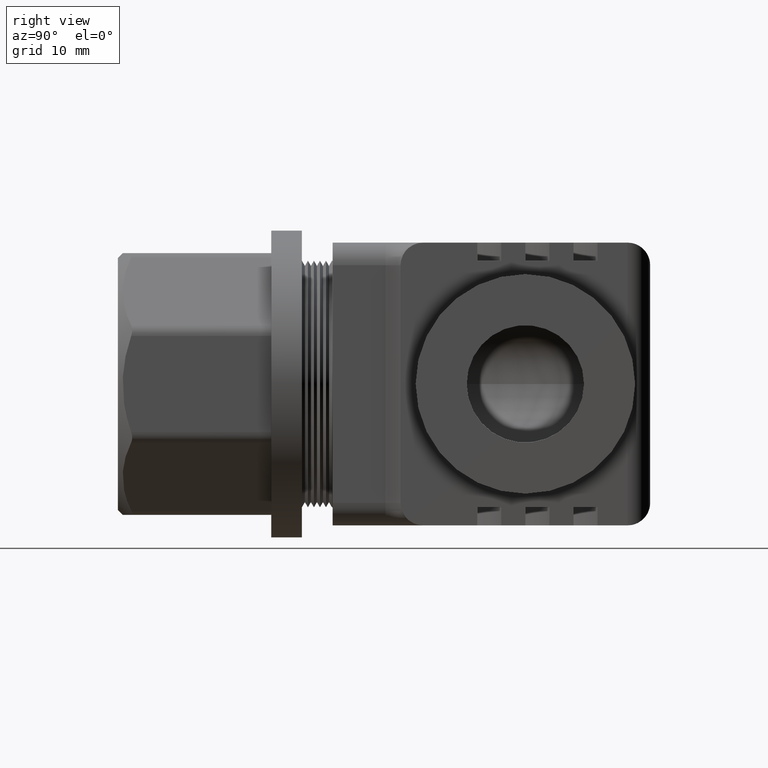
[diagram: clean part render]
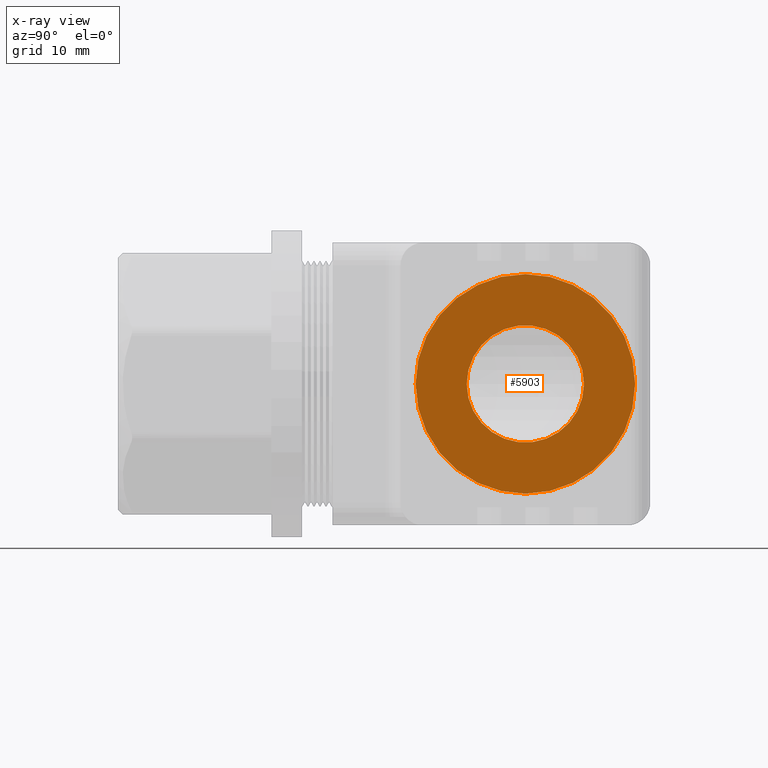
[diagram: x-ray — body ghosted, one internal face saturated and labeled with its STEP entity id]
A machine part, right view, then the same camera in x-ray: the body is ghosted and one INTERNAL B-rep face — a face not visible from any outside direction — is saturated and labeled: STEP entity #5903.
In plain terms, the highlighted planar face has unit normal (1, 0, 0).
Its self-contained STEP definition (entity closure, byte-faithful):
#1384 = EDGE_CURVE ( 'NONE', #1385, #1386, #3998, .T. ) ;
#1385 = VERTEX_POINT ( 'NONE', #3994 ) ;
#1386 = VERTEX_POINT ( 'NONE', #3993 ) ;
#1397 = EDGE_CURVE ( 'NONE', #1410, #1398, #3984, .T. ) ;
#1398 = VERTEX_POINT ( 'NONE', #3979 ) ;
#1410 = VERTEX_POINT ( 'NONE', #4024 ) ;
#3937 = CARTESIAN_POINT ( 'NONE',  ( 0.5119822449999998900, 1.355000000000000000, 0.0000000000000000000 ) ) ;
#3979 = CARTESIAN_POINT ( 'NONE',  ( 0.5119822449999997800, 1.355000000000000000, 0.3649999999999995500 ) ) ;
#3980 = DIRECTION ( 'NONE',  ( 0.0000000000000000000, 0.0000000000000000000, -1.000000000000000000 ) ) ;
#3981 = DIRECTION ( 'NONE',  ( 1.000000000000000000, -0.0000000000000000000, -0.0000000000000000000 ) ) ;
#3982 = CARTESIAN_POINT ( 'NONE',  ( 0.5119822449999997800, 1.355000000000000000, 0.0000000000000000000 ) ) ;
#3983 = AXIS2_PLACEMENT_3D ( 'NONE', #3982, #3981, #3980 ) ;
#3984 = CIRCLE ( 'NONE', #3983, 0.3649999999999995500 ) ;
#3993 = CARTESIAN_POINT ( 'NONE',  ( 0.5119822449999998900, 1.159999999999999900, 2.387982389953637500E-017 ) ) ;
#3994 = CARTESIAN_POINT ( 'NONE',  ( 0.5119822449999998900, 1.549999999999999800, 0.0000000000000000000 ) ) ;
#3995 = DIRECTION ( 'NONE',  ( 0.0000000000000000000, 1.000000000000000000, 0.0000000000000000000 ) ) ;
#3996 = DIRECTION ( 'NONE',  ( -1.000000000000000000, -9.756599977372369900E-017, -0.0000000000000000000 ) ) ;
#3997 = AXIS2_PLACEMENT_3D ( 'NONE', #3937, #3996, #3995 ) ;
#3998 = CIRCLE ( 'NONE', #3997, 0.1949999999999999800 ) ;
#4024 = CARTESIAN_POINT ( 'NONE',  ( 0.5119822449999997800, 1.355000000000000000, -0.3649999999999995500 ) ) ;
#4658 = DIRECTION ( 'NONE',  ( 0.0000000000000000000, 0.0000000000000000000, -1.000000000000000000 ) ) ;
#4659 = DIRECTION ( 'NONE',  ( 1.000000000000000000, -0.0000000000000000000, -0.0000000000000000000 ) ) ;
#4660 = CARTESIAN_POINT ( 'NONE',  ( 0.5119822449999997800, 1.355000000000000000, 0.0000000000000000000 ) ) ;
#4661 = AXIS2_PLACEMENT_3D ( 'NONE', #4660, #4659, #4658 ) ;
#4662 = CIRCLE ( 'NONE', #4661, 0.3649999999999995500 ) ;
#4667 = DIRECTION ( 'NONE',  ( -9.756599977372368600E-017, 1.000000000000000000, 0.0000000000000000000 ) ) ;
#4668 = DIRECTION ( 'NONE',  ( 1.000000000000000000, 9.756599977372368600E-017, 0.0000000000000000000 ) ) ;
#4669 = AXIS2_PLACEMENT_3D ( 'NONE', #4671, #4668, #4667 ) ;
#4671 = CARTESIAN_POINT ( 'NONE',  ( 0.5119822449999998900, 1.355000000000000000, -2.048885995248197400E-016 ) ) ;
#4672 = PLANE ( 'NONE',  #4669 ) ;
#4673 = FACE_BOUND ( 'NONE', #5858, .T. ) ;
#4674 = FACE_OUTER_BOUND ( 'NONE', #5904, .T. ) ;
#4675 = DIRECTION ( 'NONE',  ( 0.0000000000000000000, 1.000000000000000000, 0.0000000000000000000 ) ) ;
#4676 = DIRECTION ( 'NONE',  ( -1.000000000000000000, -9.756599977372369900E-017, -0.0000000000000000000 ) ) ;
#4677 = CARTESIAN_POINT ( 'NONE',  ( 0.5119822449999998900, 1.355000000000000000, 0.0000000000000000000 ) ) ;
#4678 = AXIS2_PLACEMENT_3D ( 'NONE', #4677, #4676, #4675 ) ;
#4679 = CIRCLE ( 'NONE', #4678, 0.1949999999999999800 ) ;
#5850 = ORIENTED_EDGE ( 'NONE', *, *, #1384, .F. ) ;
#5851 = ORIENTED_EDGE ( 'NONE', *, *, #5902, .F. ) ;
#5856 = ORIENTED_EDGE ( 'NONE', *, *, #5908, .F. ) ;
#5857 = ORIENTED_EDGE ( 'NONE', *, *, #1397, .F. ) ;
#5858 = EDGE_LOOP ( 'NONE', ( #5850, #5851 ) ) ;
#5902 = EDGE_CURVE ( 'NONE', #1386, #1385, #4679, .T. ) ;
#5903 = ADVANCED_FACE ( 'NONE', ( #4674, #4673 ), #4672, .F. ) ;
#5904 = EDGE_LOOP ( 'NONE', ( #5856, #5857 ) ) ;
#5908 = EDGE_CURVE ( 'NONE', #1398, #1410, #4662, .T. ) ;